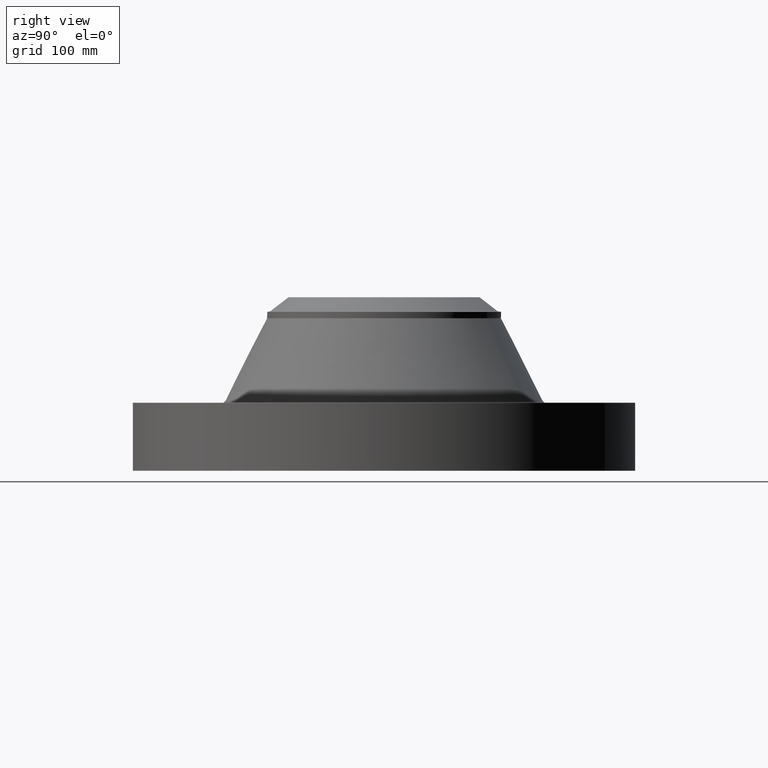
[diagram: clean part render]
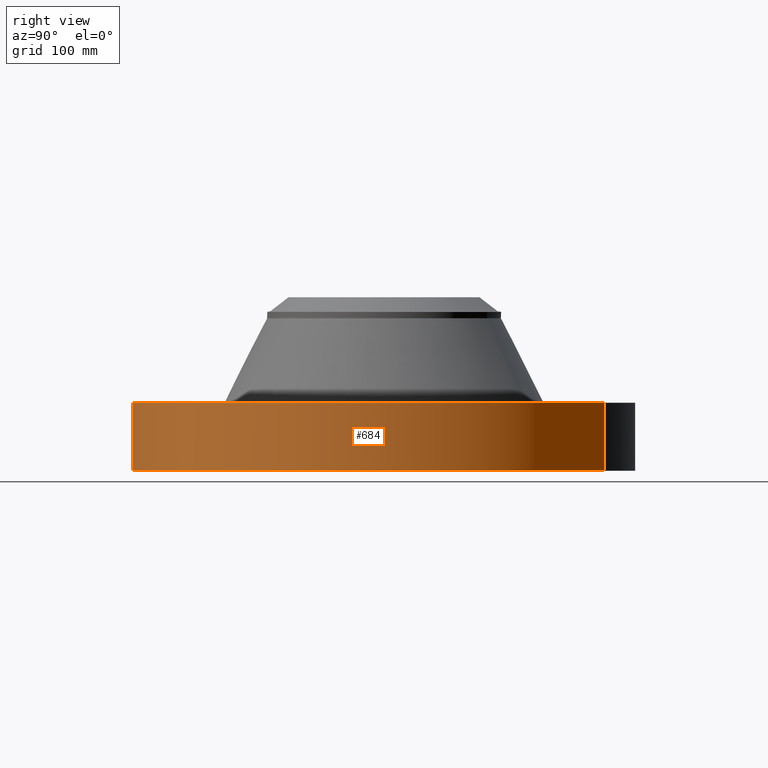
[diagram: same view with one face highlighted and labeled with its STEP entity id]
A machine part, right view. The second image highlights one B-rep face of the part: STEP entity #684.
In plain terms, the highlighted cylindrical surface (partial cylindrical patch) has radius 234.95 mm, axis along (0, 0, -1).
Its self-contained STEP definition (entity closure, byte-faithful):
#140=AXIS2_PLACEMENT_3D('Circle Axis2P3D',#138,#139,$) ;
#382=AXIS2_PLACEMENT_3D('Circle Axis2P3D',#380,#381,$) ;
#676=AXIS2_PLACEMENT_3D('Cylinder Axis2P3D',#673,#674,#675) ;
#133=CARTESIAN_POINT('Vertex',(-4.43468623211,-8.11763869752,1.1189649382E-015)) ;
#135=CARTESIAN_POINT('Vertex',(4.43468623211,8.11763869752,-1.11202735559E-011)) ;
#138=CARTESIAN_POINT('Axis2P3D Location',(3.08498633463E-011,-6.85589817638E-012,0.)) ;
#380=CARTESIAN_POINT('Axis2P3D Location',(0.,-3.99918068914E-012,2.50000000001)) ;
#384=CARTESIAN_POINT('Vertex',(4.43468623211,8.11763869752,2.49999999999)) ;
#386=CARTESIAN_POINT('Vertex',(-4.43468623211,-8.11763869752,2.49999999999)) ;
#649=CARTESIAN_POINT('Line Origine',(-4.43468623211,-8.11763869752,1.25)) ;
#654=CARTESIAN_POINT('Line Origine',(4.43468623211,8.11763869752,1.25)) ;
#673=CARTESIAN_POINT('Axis2P3D Location',(0.,0.,3.19000000001)) ;
#139=DIRECTION('Axis2P3D Direction',(0.,0.,-0.0393700787402)) ;
#381=DIRECTION('Axis2P3D Direction',(0.,0.,-0.0393700787402)) ;
#650=DIRECTION('Vector Direction',(0.,0.,-0.0393700787402)) ;
#655=DIRECTION('Vector Direction',(0.,0.,-0.0393700787402)) ;
#674=DIRECTION('Axis2P3D Direction',(0.,0.,-0.0393700787402)) ;
#675=DIRECTION('Axis2P3D XDirection',(0.0188750212049,0.0345504945626,0.)) ;
#651=VECTOR('Line Direction',#650,0.0393700787402) ;
#656=VECTOR('Line Direction',#655,0.0393700787402) ;
#679=ORIENTED_EDGE('',*,*,#142,.F.) ;
#680=ORIENTED_EDGE('',*,*,#658,.T.) ;
#681=ORIENTED_EDGE('',*,*,#388,.T.) ;
#682=ORIENTED_EDGE('',*,*,#653,.F.) ;
#684=ADVANCED_FACE('PartBody',(#683),#677,.T.) ;
#141=CIRCLE('generated circle',#140,9.25000000003) ;
#383=CIRCLE('generated circle',#382,9.25000000003) ;
#677=CYLINDRICAL_SURFACE('generated cylinder',#676,9.25000000004) ;
#142=EDGE_CURVE('',#136,#134,#141,.T.) ;
#388=EDGE_CURVE('',#385,#387,#383,.T.) ;
#653=EDGE_CURVE('',#134,#387,#652,.F.) ;
#658=EDGE_CURVE('',#136,#385,#657,.F.) ;
#678=EDGE_LOOP('',(#679,#680,#681,#682)) ;
#683=FACE_OUTER_BOUND('',#678,.T.) ;
#652=LINE('Line',#649,#651) ;
#657=LINE('Line',#654,#656) ;
#134=VERTEX_POINT('',#133) ;
#136=VERTEX_POINT('',#135) ;
#385=VERTEX_POINT('',#384) ;
#387=VERTEX_POINT('',#386) ;